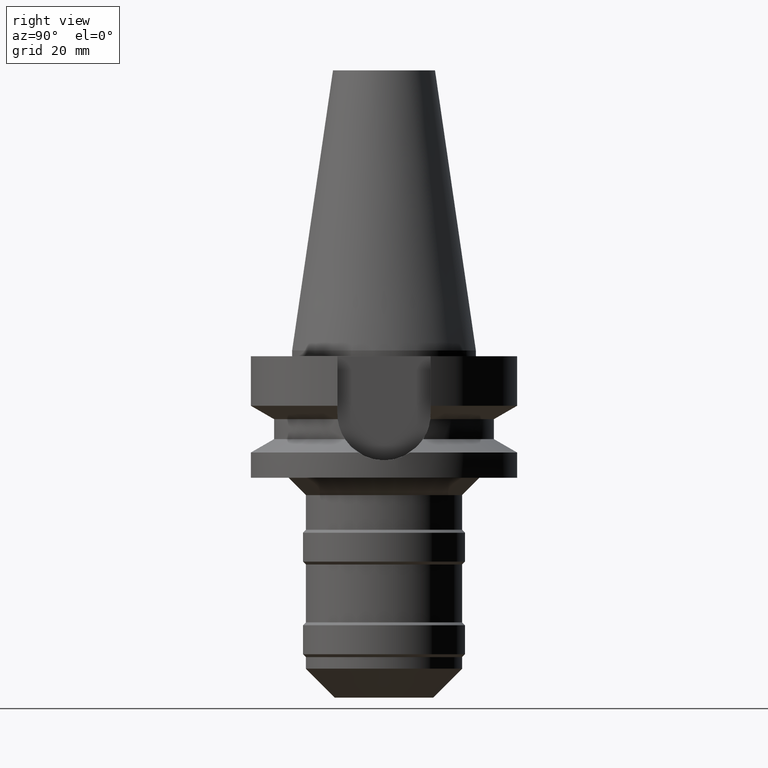
[diagram: clean part render]
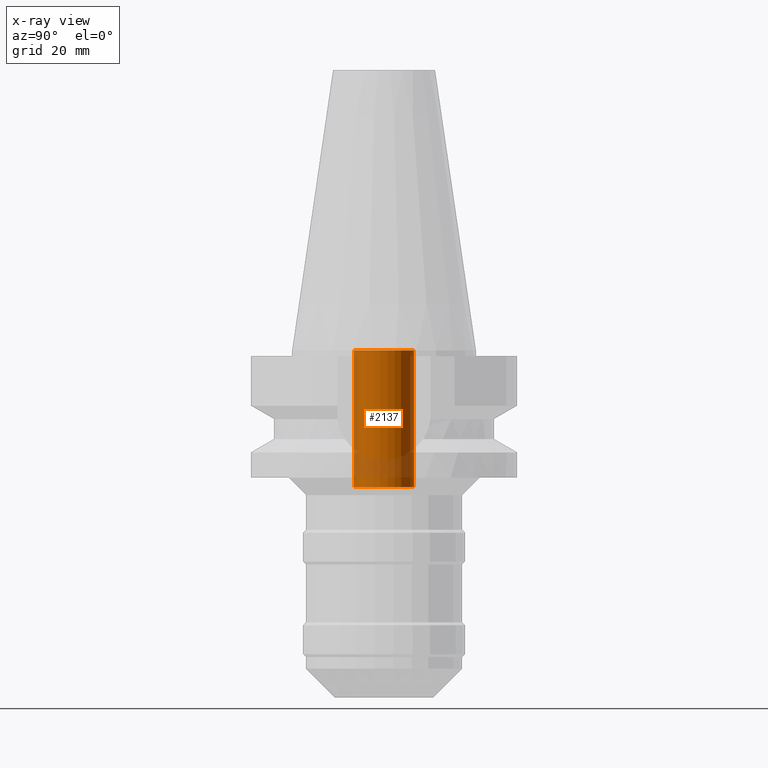
[diagram: x-ray — body ghosted, one internal face saturated and labeled with its STEP entity id]
A machine part, right view, then the same camera in x-ray: the body is ghosted and one INTERNAL B-rep face — a face not visible from any outside direction — is saturated and labeled: STEP entity #2137.
In plain terms, the highlighted cylindrical surface (edge-blend (fillet) strip) has radius 5.2 mm, axis along (0, 0, -1).
Its self-contained STEP definition (entity closure, byte-faithful):
#1019=CARTESIAN_POINT('',(0.E0,1.883751706448E-14,-2.36E1));
#1020=DIRECTION('',(0.E0,0.E0,-1.E0));
#1021=DIRECTION('',(0.E0,1.E0,0.E0));
#1022=AXIS2_PLACEMENT_3D('',#1019,#1020,#1021);
#1043=DIRECTION('',(0.E0,0.E0,1.E0));
#1044=VECTOR('',#1043,2.36E1);
#1045=CARTESIAN_POINT('',(0.E0,-5.2E0,-2.36E1));
#1046=LINE('',#1045,#1044);
#1058=DIRECTION('',(0.E0,0.E0,1.E0));
#1059=VECTOR('',#1058,2.36E1);
#1060=CARTESIAN_POINT('',(0.E0,5.2E0,-2.36E1));
#1061=LINE('',#1060,#1059);
#1072=CARTESIAN_POINT('',(0.E0,1.883751706448E-14,-1.421085471520E-14));
#1073=DIRECTION('',(0.E0,0.E0,1.E0));
#1074=DIRECTION('',(0.E0,-1.E0,0.E0));
#1075=AXIS2_PLACEMENT_3D('',#1072,#1073,#1074);
#1169=CARTESIAN_POINT('',(0.E0,5.2E0,0.E0));
#1170=VERTEX_POINT('',#1169);
#1171=CARTESIAN_POINT('',(0.E0,-5.2E0,0.E0));
#1172=VERTEX_POINT('',#1171);
#1173=CARTESIAN_POINT('',(0.E0,5.2E0,-2.36E1));
#1174=VERTEX_POINT('',#1173);
#1175=CARTESIAN_POINT('',(0.E0,-5.2E0,-2.36E1));
#1176=VERTEX_POINT('',#1175);
#2125=CARTESIAN_POINT('',(0.E0,1.883751706448E-14,5.382E1));
#2126=DIRECTION('',(0.E0,0.E0,-1.E0));
#2127=DIRECTION('',(0.E0,-1.E0,0.E0));
#2128=AXIS2_PLACEMENT_3D('',#2125,#2126,#2127);
#2129=CYLINDRICAL_SURFACE('',#2128,5.2E0);
#2130=ORIENTED_EDGE('',*,*,#2115,.T.);
#2132=ORIENTED_EDGE('',*,*,#2131,.F.);
#2133=ORIENTED_EDGE('',*,*,#2118,.F.);
#2134=ORIENTED_EDGE('',*,*,#2101,.F.);
#2135=EDGE_LOOP('',(#2130,#2132,#2133,#2134));
#2136=FACE_OUTER_BOUND('',#2135,.F.);
#1023=CIRCLE('',#1022,5.2E0);
#1076=CIRCLE('',#1075,5.2E0);
#2101=EDGE_CURVE('',#1174,#1176,#1023,.T.);
#2115=EDGE_CURVE('',#1174,#1170,#1061,.T.);
#2118=EDGE_CURVE('',#1176,#1172,#1046,.T.);
#2131=EDGE_CURVE('',#1172,#1170,#1076,.T.);
#2137=ADVANCED_FACE('',(#2136),#2129,.F.);